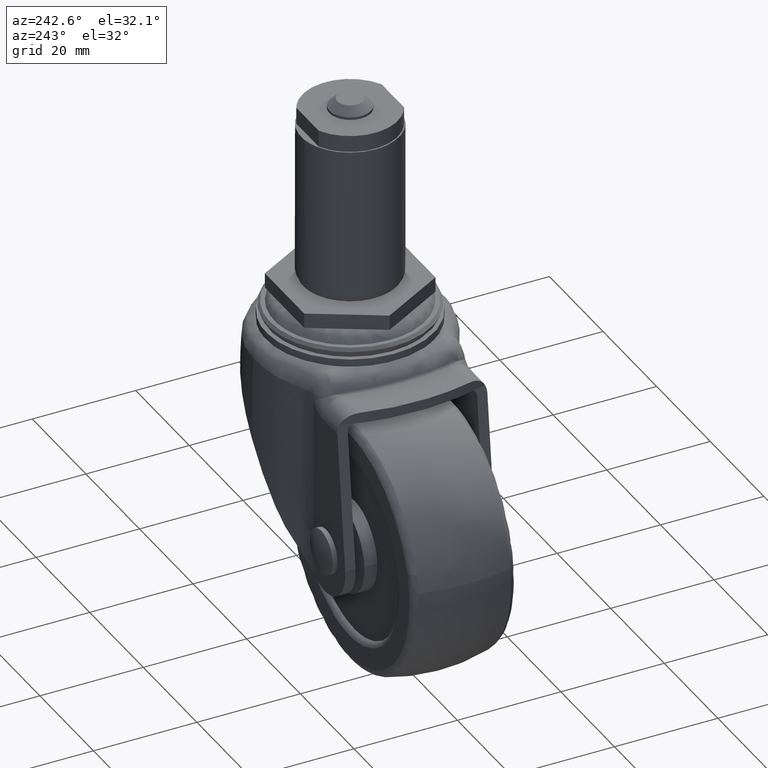
[diagram: clean part render]
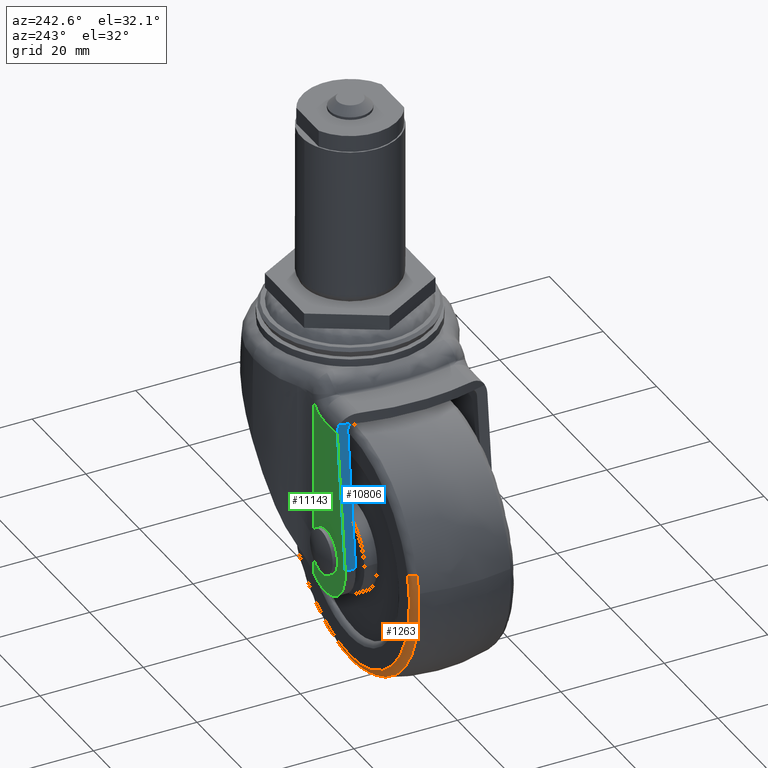
[diagram: same view with three faces highlighted in distinct colors, each labeled with its STEP entity id]
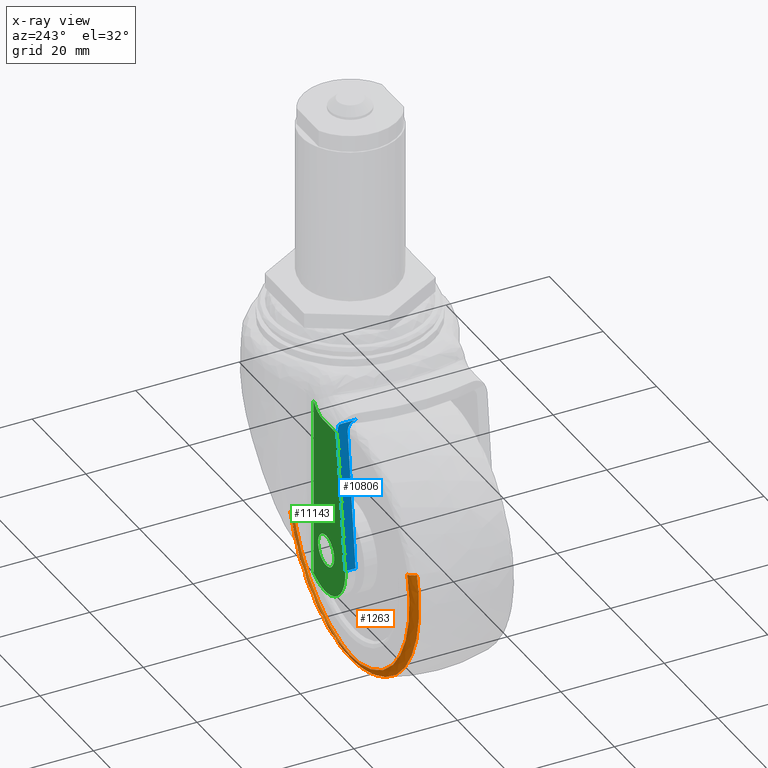
[diagram: x-ray of the same camera — body ghosted, the three highlighted faces saturated]
A machine part, auxiliary view with three faces highlighted in distinct colors.
The next image is the same camera in x-ray (body ghosted, the three faces saturated) — at least one of them is partly hidden behind the body in this view.
Their STEP definitions:

[orange] entity #1263 — the highlighted face is a freeform B-spline surface patch.
#1064=CARTESIAN_POINT('',(4.028813119945495,8.880489886675726,-47.222679916615441));
#1065=VERTEX_POINT('',#1064);
#1083=CARTESIAN_POINT('',(2.628124485182831,9.999900999999911,-46.844236898328127));
#1084=VERTEX_POINT('',#1083);
#1085=CARTESIAN_POINT('',(2.628124485182831,9.999900999999911,-46.844236898328127));
#1086=CARTESIAN_POINT('',(3.745344143223921,9.999900484774969,-47.146096132718164));
#1087=CARTESIAN_POINT('',(4.028813119945494,8.880489886675726,-47.222679916615441));
#1095=(BOUNDED_CURVE()B_SPLINE_CURVE(2,(#1085,#1086,#1087),.UNSPECIFIED.,.F.,.U.)B_SPLINE_CURVE_WITH_KNOTS((3,3),(-1.696659795800468,-0.309248608880567),.UNSPECIFIED.)CURVE()GEOMETRIC_REPRESENTATION_ITEM()RATIONAL_B_SPLINE_CURVE((0.899876851244195,0.711843149614553,0.898282128526452))REPRESENTATION_ITEM(''));
#1096=EDGE_CURVE('',#1084,#1065,#1095,.T.);
#1115=CARTESIAN_POINT('',(-40.628124485182838,9.999900999999912,-35.156605101672092));
#1116=VERTEX_POINT('',#1115);
#1130=CARTESIAN_POINT('',(-42.028807899499128,8.880497459937100,-34.778147135494770));
#1131=VERTEX_POINT('',#1130);
#1132=CARTESIAN_POINT('',(-40.628124485182845,9.999900999999911,-35.156605101672085));
#1133=CARTESIAN_POINT('',(-41.745336664630287,9.999900605327268,-34.854739708771788));
#1134=CARTESIAN_POINT('',(-42.028807899499128,8.880497459937100,-34.778147135494777));
#1142=(BOUNDED_CURVE()B_SPLINE_CURVE(2,(#1132,#1133,#1134),.UNSPECIFIED.,.F.,.U.)B_SPLINE_CURVE_WITH_KNOTS((3,3),(-1.696659795800466,-0.309254368933796),.UNSPECIFIED.)CURVE()GEOMETRIC_REPRESENTATION_ITEM()RATIONAL_B_SPLINE_CURVE((0.899876851244194,0.711843930265697,0.898280580472097))REPRESENTATION_ITEM(''));
#1143=EDGE_CURVE('',#1116,#1131,#1142,.T.);
#1161=CARTESIAN_POINT('',(-40.540825772419034,9.997172734717033,-35.180192796782336));
#1162=CARTESIAN_POINT('',(-46.361053975636800,9.997172734717037,-56.721018569201377));
#1163=CARTESIAN_POINT('',(-24.820228203217756,9.997172734717033,-62.541246772419143));
#1164=CARTESIAN_POINT('',(-3.279402430798734,9.997172734717037,-68.361474975636909));
#1165=CARTESIAN_POINT('',(2.540825772419034,9.997172734717033,-46.820649203217869));
#1166=CARTESIAN_POINT('',(-41.802220761309577,10.076087414427784,-34.839369897637106));
#1167=CARTESIAN_POINT('',(-47.963271863672581,10.076087414427787,-57.641590658946690));
#1168=CARTESIAN_POINT('',(-25.161051102362997,10.076087414427784,-63.802641761309687));
#1169=CARTESIAN_POINT('',(-2.358830341053424,10.076087414427787,-69.963692863672676));
#1170=CARTESIAN_POINT('',(3.802220761309581,10.076087414427784,-47.161472102363113));
#1171=CARTESIAN_POINT('',(-42.048443197118715,8.792166227654304,-34.772841771914266));
#1172=CARTESIAN_POINT('',(-48.276022425204538,8.792166227654306,-57.821284969032959));
#1173=CARTESIAN_POINT('',(-25.227579228085837,8.792166227654304,-64.048864197118803));
#1174=CARTESIAN_POINT('',(-2.179136030967138,8.792166227654306,-70.276443425204647));
#1175=CARTESIAN_POINT('',(4.048443197118707,8.792166227654304,-47.228000228085946));
#1183=(BOUNDED_SURFACE()B_SPLINE_SURFACE(2,2,((#1161,#1166,#1171),(#1162,#1167,#1172),(#1163,#1168,#1173),(#1164,#1169,#1174),(#1165,#1170,#1175)),.UNSPECIFIED.,.F.,.F.,.U.)B_SPLINE_SURFACE_WITH_KNOTS((3,2,3),(3,3),(0.0,39.557320669038653,79.114641338077305),(0.0,2.249893607470231),.UNSPECIFIED.)GEOMETRIC_REPRESENTATION_ITEM()RATIONAL_B_SPLINE_SURFACE(((0.919596098118396,0.692203795207752,0.917841594086243),(0.650252636932207,0.489461997554465,0.649012015233453),(0.919596098118396,0.692203795207752,0.917841594086243),(0.650252636932207,0.489461997554465,0.649012015233453),(0.919596098118396,0.692203795207752,0.917841594086243)))REPRESENTATION_ITEM('')SURFACE());
#1184=CARTESIAN_POINT('',(-19.0,8.880498014925280,-64.855036588697899));
#1185=VERTEX_POINT('',#1184);
#1186=CARTESIAN_POINT('',(-19.0,8.880498014925280,-64.855036588697899));
#1187=CARTESIAN_POINT('',(-0.735354514622848,8.880496921067909,-64.855036791662172));
#1188=CARTESIAN_POINT('',(4.028813119945495,8.880489886675726,-47.222679916615441));
#1196=(BOUNDED_CURVE()B_SPLINE_CURVE(2,(#1186,#1187,#1188),.UNSPECIFIED.,.F.,.U.)B_SPLINE_CURVE_WITH_KNOTS((3,3),(0.0,0.205522304480087),.UNSPECIFIED.)CURVE()GEOMETRIC_REPRESENTATION_ITEM()RATIONAL_B_SPLINE_CURVE((1.0,0.759215642811476,0.914323733400086))REPRESENTATION_ITEM(''));
#1197=EDGE_CURVE('',#1185,#1065,#1196,.T.);
#1198=ORIENTED_EDGE('',*,*,#1197,.F.);
#1199=CARTESIAN_POINT('',(-42.695069877122449,8.880498927539524,-38.246090413273862));
#1200=VERTEX_POINT('',#1199);
#1201=CARTESIAN_POINT('',(-42.695069877122449,8.880498927539524,-38.246090413273855));
#1202=CARTESIAN_POINT('',(-42.854615588697804,8.880498014925280,-39.618634831749134));
#1203=CARTESIAN_POINT('',(-42.854615588697797,8.880498014925280,-41.000421000000102));
#1204=CARTESIAN_POINT('',(-42.854615588697797,8.880498014925280,-64.855036588697899));
#1205=CARTESIAN_POINT('',(-19.0,8.880498014925280,-64.855036588697899));
#1213=(BOUNDED_CURVE()B_SPLINE_CURVE(2,(#1201,#1202,#1203,#1204,#1205),.UNSPECIFIED.,.F.,.U.)B_SPLINE_CURVE_WITH_KNOTS((3,2,3),(0.730000172691811,0.750000000000000,1.0),.UNSPECIFIED.)CURVE()GEOMETRIC_REPRESENTATION_ITEM()RATIONAL_B_SPLINE_CURVE((0.956886458090290,0.976568744815966,1.0,0.707106781186547,1.0))REPRESENTATION_ITEM(''));
#1214=EDGE_CURVE('',#1200,#1185,#1213,.T.);
#1215=ORIENTED_EDGE('',*,*,#1214,.F.);
#1216=CARTESIAN_POINT('',(-42.028807899499121,8.880497459937100,-34.778147135494777));
#1217=CARTESIAN_POINT('',(-42.490637772213731,8.880498219636849,-36.487393125349229));
#1218=CARTESIAN_POINT('',(-42.695069877122449,8.880498927539524,-38.246090413273855));
#1226=(BOUNDED_CURVE()B_SPLINE_CURVE(2,(#1216,#1217,#1218),.UNSPECIFIED.,.F.,.U.)B_SPLINE_CURVE_WITH_KNOTS((3,3),(0.705522210326193,0.730000172691811),.UNSPECIFIED.)CURVE()GEOMETRIC_REPRESENTATION_ITEM()RATIONAL_B_SPLINE_CURVE((0.914323591283909,0.932797136401840,0.956886458090290))REPRESENTATION_ITEM(''));
#1227=EDGE_CURVE('',#1131,#1200,#1226,.T.);
#1228=ORIENTED_EDGE('',*,*,#1227,.F.);
#1229=ORIENTED_EDGE('',*,*,#1143,.F.);
#1230=CARTESIAN_POINT('',(-19.0,9.999901000000000,-63.404124999999887));
#1231=VERTEX_POINT('',#1230);
#1232=CARTESIAN_POINT('',(-40.628124485182830,9.999900999999912,-35.156605101672085));
#1233=CARTESIAN_POINT('',(-41.403703999999792,9.999901000000001,-38.027046372690180));
#1234=CARTESIAN_POINT('',(-41.403703999999799,9.999901000000000,-41.000421000000102));
#1235=CARTESIAN_POINT('',(-41.403703999999784,9.999901000000000,-63.404124999999894));
#1236=CARTESIAN_POINT('',(-19.0,9.999901000000000,-63.404124999999887));
#1244=(BOUNDED_CURVE()B_SPLINE_CURVE(2,(#1232,#1233,#1234,#1235,#1236),.UNSPECIFIED.,.F.,.U.)B_SPLINE_CURVE_WITH_KNOTS((3,2,3),(0.705522207670472,0.750000000000000,1.0),.UNSPECIFIED.)CURVE()GEOMETRIC_REPRESENTATION_ITEM()RATIONAL_B_SPLINE_CURVE((0.914323587275358,0.947891024955553,1.0,0.707106781186547,1.0))REPRESENTATION_ITEM(''));
#1245=EDGE_CURVE('',#1116,#1231,#1244,.T.);
#1246=ORIENTED_EDGE('',*,*,#1245,.T.);
#1247=CARTESIAN_POINT('',(-19.0,9.999901000000000,-63.404124999999887));
#1248=CARTESIAN_POINT('',(-1.846278159859508,9.999900999999998,-63.404124999999880));
#1249=CARTESIAN_POINT('',(2.628124485182831,9.999900999999912,-46.844236898328134));
#1257=(BOUNDED_CURVE()B_SPLINE_CURVE(2,(#1247,#1248,#1249),.UNSPECIFIED.,.F.,.U.)B_SPLINE_CURVE_WITH_KNOTS((3,3),(0.0,0.205522207670472),.UNSPECIFIED.)CURVE()GEOMETRIC_REPRESENTATION_ITEM()RATIONAL_B_SPLINE_CURVE((1.0,0.759215756230994,0.914323587275358))REPRESENTATION_ITEM(''));
#1258=EDGE_CURVE('',#1231,#1084,#1257,.T.);
#1259=ORIENTED_EDGE('',*,*,#1258,.T.);
#1260=ORIENTED_EDGE('',*,*,#1096,.T.);
#1261=EDGE_LOOP('',(#1198,#1215,#1228,#1229,#1246,#1259,#1260));
#1262=FACE_OUTER_BOUND('',#1261,.T.);
#1263=ADVANCED_FACE('',(#1262),#1183,.T.);

[blue] entity #10806 — the highlighted face is a freeform B-spline surface patch.
#8267=CARTESIAN_POINT('',(-23.201319942602201,14.500240000000000,-14.101519000000120));
#8268=VERTEX_POINT('',#8267);
#8274=CARTESIAN_POINT('',(-23.006175807149749,14.066864790355460,-12.351519000000099));
#8275=VERTEX_POINT('',#8274);
#8276=CARTESIAN_POINT('',(-23.006175807149731,14.066864790355391,-12.351519000000099));
#8277=CARTESIAN_POINT('',(-23.097764068382634,14.500240000000003,-13.172857836475965));
#8278=CARTESIAN_POINT('',(-23.201319942602151,14.500240000000000,-14.101519000000120));
#8286=(BOUNDED_CURVE()B_SPLINE_CURVE(2,(#8276,#8277,#8278),.UNSPECIFIED.,.F.,.U.)CURVE()GEOMETRIC_REPRESENTATION_ITEM()QUASI_UNIFORM_CURVE()RATIONAL_B_SPLINE_CURVE((1.0,0.970678442489607,1.0))REPRESENTATION_ITEM(''));
#8287=EDGE_CURVE('',#8275,#8268,#8286,.T.);
#9264=CARTESIAN_POINT('',(-23.201319942602201,12.500240000000000,-14.101519000000120));
#9265=VERTEX_POINT('',#9264);
#9266=CARTESIAN_POINT('',(-23.006175807149749,10.750240000000000,-12.351519000000099));
#9267=VERTEX_POINT('',#9266);
#9268=CARTESIAN_POINT('',(-23.201319942602151,12.500240000000000,-14.101519000000129));
#9269=CARTESIAN_POINT('',(-23.120488595080189,12.500240000000000,-13.376645265847197));
#9270=CARTESIAN_POINT('',(-23.063332201114960,11.987676867076470,-12.864082132923651));
#9271=CARTESIAN_POINT('',(-23.006175807149731,11.475113734152918,-12.351519000000104));
#9272=CARTESIAN_POINT('',(-23.006175807149731,10.750240000000000,-12.351519000000099));
#9280=(BOUNDED_CURVE()B_SPLINE_CURVE(2,(#9268,#9269,#9270,#9271,#9272),.UNSPECIFIED.,.F.,.U.)B_SPLINE_CURVE_WITH_KNOTS((3,2,3),(0.0,0.500000000000000,1.0),.UNSPECIFIED.)CURVE()GEOMETRIC_REPRESENTATION_ITEM()RATIONAL_B_SPLINE_CURVE((1.0,0.923879532511324,1.0,0.923879532511324,1.0))REPRESENTATION_ITEM(''));
#9281=EDGE_CURVE('',#9265,#9267,#9280,.T.);
#9886=CARTESIAN_POINT('',(-26.117611551857099,12.500240000000000,-40.254040198941098));
#9887=VERTEX_POINT('',#9886);
#9888=CARTESIAN_POINT('',(-26.117611551857099,12.500240000000000,-40.254040198941098));
#9889=CARTESIAN_POINT('',(-23.201319942602201,12.500240000000000,-14.101519000000120));
#9890=QUASI_UNIFORM_CURVE('',1,(#9888,#9889),.UNSPECIFIED.,.F.,.U.);
#9891=EDGE_CURVE('',#9887,#9265,#9890,.T.);
#10779=CARTESIAN_POINT('',(-26.273028190613658,10.562927810691450,-41.647770500499902));
#10780=CARTESIAN_POINT('',(-22.850759493851729,10.562927810691450,-10.957787399298949));
#10781=CARTESIAN_POINT('',(-26.273028190613658,14.687552859860810,-41.647770500499902));
#10782=CARTESIAN_POINT('',(-22.850759493851729,14.687552859860810,-10.957787399298949));
#10783=B_SPLINE_SURFACE_WITH_KNOTS('',1,1,((#10779,#10781),(#10780,#10782)),.UNSPECIFIED.,.F.,.F.,.U.,(2,2),(2,2),(0.0,30.880203784703831),(0.0,4.124625049169362),.UNSPECIFIED.);
#10784=CARTESIAN_POINT('',(-23.006175807149749,10.750240000000000,-12.351519000000099));
#10785=CARTESIAN_POINT('',(-23.006175807149749,14.066864790355460,-12.351519000000099));
#10786=QUASI_UNIFORM_CURVE('',1,(#10784,#10785),.UNSPECIFIED.,.F.,.U.);
#10787=EDGE_CURVE('',#9267,#8275,#10786,.T.);
#10788=ORIENTED_EDGE('',*,*,#10787,.T.);
#10789=ORIENTED_EDGE('',*,*,#8287,.T.);
#10790=CARTESIAN_POINT('',(-26.117611551857099,14.500240000000000,-40.254040198941098));
#10791=VERTEX_POINT('',#10790);
#10792=CARTESIAN_POINT('',(-26.117611551857099,14.500240000000000,-40.254040198941098));
#10793=CARTESIAN_POINT('',(-23.201319942602201,14.500240000000000,-14.101519000000120));
#10794=QUASI_UNIFORM_CURVE('',1,(#10792,#10793),.UNSPECIFIED.,.F.,.U.);
#10795=EDGE_CURVE('',#10791,#8268,#10794,.T.);
#10796=ORIENTED_EDGE('',*,*,#10795,.F.);
#10797=CARTESIAN_POINT('',(-26.117611551857099,12.500240000000000,-40.254040198941098));
#10798=CARTESIAN_POINT('',(-26.117611551857099,14.500240000000000,-40.254040198941098));
#10799=QUASI_UNIFORM_CURVE('',1,(#10797,#10798),.UNSPECIFIED.,.F.,.U.);
#10800=EDGE_CURVE('',#9887,#10791,#10799,.T.);
#10801=ORIENTED_EDGE('',*,*,#10800,.F.);
#10802=ORIENTED_EDGE('',*,*,#9891,.T.);
#10803=ORIENTED_EDGE('',*,*,#9281,.T.);
#10804=EDGE_LOOP('',(#10788,#10789,#10796,#10801,#10802,#10803));
#10805=FACE_OUTER_BOUND('',#10804,.T.);
#10806=ADVANCED_FACE('',(#10805),#10783,.T.);

[green] entity #11143 — the highlighted face is a freeform B-spline surface patch.
#4149=CARTESIAN_POINT('',(-16.020971420945369,14.500240000000000,-39.646396295724543));
#4150=VERTEX_POINT('',#4149);
#4156=CARTESIAN_POINT('',(-19.0,14.500240000000000,-43.000499000000019));
#4157=VERTEX_POINT('',#4156);
#4158=CARTESIAN_POINT('',(-16.020971420945369,14.500240000000002,-39.646396295724550));
#4159=CARTESIAN_POINT('',(-16.000000000000085,14.500240000000000,-39.822826640735848));
#4160=CARTESIAN_POINT('',(-16.000000000000082,14.500240000000000,-40.000499000000097));
#4161=CARTESIAN_POINT('',(-16.000000000000082,14.500240000000009,-43.000499000000012));
#4162=CARTESIAN_POINT('',(-19.0,14.500240000000000,-43.000499000000019));
#4170=(BOUNDED_CURVE()B_SPLINE_CURVE(2,(#4158,#4159,#4160,#4161,#4162),.UNSPECIFIED.,.F.,.U.)B_SPLINE_CURVE_WITH_KNOTS((3,2,3),(0.229562473481005,0.250000000000000,0.500000000000000),.UNSPECIFIED.)CURVE()GEOMETRIC_REPRESENTATION_ITEM()RATIONAL_B_SPLINE_CURVE((0.956026754119991,0.976055948293065,1.0,0.707106781186548,1.0))REPRESENTATION_ITEM(''));
#4171=EDGE_CURVE('',#4150,#4157,#4170,.T.);
#4173=CARTESIAN_POINT('',(-21.994404395263050,14.500240000000000,-40.183644618645097));
#4174=VERTEX_POINT('',#4173);
#4175=CARTESIAN_POINT('',(-19.0,14.500240000000000,-43.000499000000019));
#4176=CARTESIAN_POINT('',(-21.822118200640624,14.500240000000003,-43.000499000000026));
#4177=CARTESIAN_POINT('',(-21.994404395263047,14.500240000000000,-40.183644618645104));
#4185=(BOUNDED_CURVE()B_SPLINE_CURVE(2,(#4175,#4176,#4177),.UNSPECIFIED.,.F.,.U.)B_SPLINE_CURVE_WITH_KNOTS((3,3),(0.500000000000000,0.739332962237306),.UNSPECIFIED.)CURVE()GEOMETRIC_REPRESENTATION_ITEM()RATIONAL_B_SPLINE_CURVE((1.0,0.719603993288627,0.976072041663210))REPRESENTATION_ITEM(''));
#4186=EDGE_CURVE('',#4157,#4174,#4185,.T.);
#4260=CARTESIAN_POINT('',(-19.0,14.500240000000000,-37.000499000000183));
#4261=VERTEX_POINT('',#4260);
#4262=CARTESIAN_POINT('',(-21.994404395263047,14.500240000000003,-40.183644618645104));
#4263=CARTESIAN_POINT('',(-21.999999999999915,14.500240000000000,-40.092157289936416));
#4264=CARTESIAN_POINT('',(-21.999999999999918,14.500240000000000,-40.000499000000097));
#4265=CARTESIAN_POINT('',(-21.999999999999918,14.500240000000009,-37.000499000000175));
#4266=CARTESIAN_POINT('',(-19.0,14.500240000000000,-37.000499000000183));
#4274=(BOUNDED_CURVE()B_SPLINE_CURVE(2,(#4262,#4263,#4264,#4265,#4266),.UNSPECIFIED.,.F.,.U.)B_SPLINE_CURVE_WITH_KNOTS((3,2,3),(0.739332962237307,0.750000000000000,1.0),.UNSPECIFIED.)CURVE()GEOMETRIC_REPRESENTATION_ITEM()RATIONAL_B_SPLINE_CURVE((0.976072041663212,0.987502787897921,1.0,0.707106781186548,1.0))REPRESENTATION_ITEM(''));
#4275=EDGE_CURVE('',#4174,#4261,#4274,.T.);
#4277=CARTESIAN_POINT('',(-19.0,14.500240000000000,-37.000499000000183));
#4278=CARTESIAN_POINT('',(-16.335476422695944,14.500240000000007,-37.000499000000183));
#4279=CARTESIAN_POINT('',(-16.020971420945369,14.500240000000002,-39.646396295724550));
#4287=(BOUNDED_CURVE()B_SPLINE_CURVE(2,(#4277,#4278,#4279),.UNSPECIFIED.,.F.,.U.)B_SPLINE_CURVE_WITH_KNOTS((3,3),(0.0,0.229562473481005),.UNSPECIFIED.)CURVE()GEOMETRIC_REPRESENTATION_ITEM()RATIONAL_B_SPLINE_CURVE((1.0,0.731050832893483,0.956026754119991))REPRESENTATION_ITEM(''));
#4288=EDGE_CURVE('',#4261,#4150,#4287,.T.);
#7836=CARTESIAN_POINT('',(-14.351389509793160,14.500240000000000,-12.355357293252419));
#7837=VERTEX_POINT('',#7836);
#8018=CARTESIAN_POINT('',(-17.872119485698050,14.500240000000000,-14.101519000000120));
#8019=VERTEX_POINT('',#8018);
#8051=CARTESIAN_POINT('',(-17.872119485698050,14.500240000000000,-14.101519000000099));
#8052=CARTESIAN_POINT('',(-17.700863526060228,14.500240000000000,-14.101519000000110));
#8053=CARTESIAN_POINT('',(-17.531450792253040,14.500240000000000,-14.091672956415319));
#8054=CARTESIAN_POINT('',(-17.196150783298911,14.500240000000000,-14.053148765741041));
#8055=CARTESIAN_POINT('',(-17.030264083564472,14.500240000000000,-14.024467544944381));
#8056=CARTESIAN_POINT('',(-16.702005608680160,14.500240000000000,-13.948329270199430));
#8057=CARTESIAN_POINT('',(-16.539633404250729,14.500240000000000,-13.900874509353351));
#8058=CARTESIAN_POINT('',(-16.298812268003470,14.500240000000000,-13.815071099990700));
#8059=CARTESIAN_POINT('',(-16.218808483072628,14.500240000000000,-13.783932925192209));
#8060=CARTESIAN_POINT('',(-16.061774417686021,14.500240000000000,-13.717510468194529));
#8061=CARTESIAN_POINT('',(-15.984523517611571,14.500240000000000,-13.682160215026631));
#8062=CARTESIAN_POINT('',(-15.756510837006161,14.500240000000000,-13.569791006644360));
#8063=CARTESIAN_POINT('',(-15.609476358145161,14.500240000000000,-13.486475088455981));
#8064=CARTESIAN_POINT('',(-15.325358650012539,14.500240000000000,-13.303031452080610));
#8065=CARTESIAN_POINT('',(-15.188273912001190,14.500240000000000,-13.202906282782619));
#8066=CARTESIAN_POINT('',(-14.990431844442380,14.500240000000000,-13.039566358831530));
#8067=CARTESIAN_POINT('',(-14.926033479608240,14.500240000000000,-12.983111452917640));
#8068=CARTESIAN_POINT('',(-14.801174026272740,14.500240000000000,-12.866949373901360));
#8069=CARTESIAN_POINT('',(-14.740579469691429,14.500240000000000,-12.807133307759480));
#8070=CARTESIAN_POINT('',(-14.564293189289060,14.500240000000010,-12.622487707199790));
#8071=CARTESIAN_POINT('',(-14.454078351992949,14.500240000000000,-12.492480154645730));
#8072=CARTESIAN_POINT('',(-14.351389509793179,14.500240000000000,-12.355357293252419));
#8073=B_SPLINE_CURVE_WITH_KNOTS('',3,(#8051,#8052,#8053,#8054,#8055,#8056,#8057,#8058,#8059,#8060,#8061,#8062,#8063,#8064,#8065,#8066,#8067,#8068,#8069,#8070,#8071,#8072),.UNSPECIFIED.,.F.,.U.,(4,2,2,2,2,2,2,2,2,2,4),(0.0,0.124999999999999,0.249999999999998,0.374999999999997,0.437499999999998,0.499999999999999,0.624999999999999,0.750000000000000,0.812500000000000,0.875000000000000,1.0),.UNSPECIFIED.);
#8074=EDGE_CURVE('',#8019,#7837,#8073,.T.);
#8267=CARTESIAN_POINT('',(-23.201319942602201,14.500240000000000,-14.101519000000120));
#8268=VERTEX_POINT('',#8267);
#8269=CARTESIAN_POINT('',(-23.201319942602201,14.500240000000000,-14.101519000000120));
#8270=CARTESIAN_POINT('',(-17.872119485698050,14.500240000000000,-14.101519000000120));
#8271=QUASI_UNIFORM_CURVE('',1,(#8269,#8270),.UNSPECIFIED.,.F.,.U.);
#8272=EDGE_CURVE('',#8268,#8019,#8271,.T.);
#9642=CARTESIAN_POINT('',(-14.351389509793160,14.500240000000000,-47.137314989502798));
#9643=VERTEX_POINT('',#9642);
#9659=CARTESIAN_POINT('',(-14.351389509793160,14.500240000000000,-12.355357293252419));
#9660=CARTESIAN_POINT('',(-14.351389509793160,14.500240000000000,-47.137314989502798));
#9661=QUASI_UNIFORM_CURVE('',1,(#9659,#9660),.UNSPECIFIED.,.F.,.U.);
#9662=EDGE_CURVE('',#7837,#9643,#9661,.T.);
#10790=CARTESIAN_POINT('',(-26.117611551857099,14.500240000000000,-40.254040198941098));
#10791=VERTEX_POINT('',#10790);
#10792=CARTESIAN_POINT('',(-26.117611551857099,14.500240000000000,-40.254040198941098));
#10793=CARTESIAN_POINT('',(-23.201319942602201,14.500240000000000,-14.101519000000120));
#10794=QUASI_UNIFORM_CURVE('',1,(#10792,#10793),.UNSPECIFIED.,.F.,.U.);
#10795=EDGE_CURVE('',#10791,#8268,#10794,.T.);
#10821=CARTESIAN_POINT('',(-15.371526078570501,14.500240000000000,-47.695787531531799));
#10822=VERTEX_POINT('',#10821);
#10830=CARTESIAN_POINT('',(-26.117611551857092,14.500240000000000,-40.254040198941098));
#10831=CARTESIAN_POINT('',(-26.524666950429690,14.500240000000003,-44.619840999164772));
#10832=CARTESIAN_POINT('',(-22.919908716751539,14.500240000000000,-47.116164055475870));
#10833=CARTESIAN_POINT('',(-19.315150483073385,14.500240000000003,-49.612487111786962));
#10834=CARTESIAN_POINT('',(-15.371526078570501,14.500240000000000,-47.695787531531799));
#10842=(BOUNDED_CURVE()B_SPLINE_CURVE(2,(#10830,#10831,#10832,#10833,#10834),.UNSPECIFIED.,.F.,.U.)B_SPLINE_CURVE_WITH_KNOTS((3,2,3),(0.0,0.500000000000000,1.0),.UNSPECIFIED.)CURVE()GEOMETRIC_REPRESENTATION_ITEM()RATIONAL_B_SPLINE_CURVE((1.0,0.863290739633807,1.0,0.863290739633807,1.0))REPRESENTATION_ITEM(''));
#10843=EDGE_CURVE('',#10791,#10822,#10842,.T.);
#10909=CARTESIAN_POINT('',(-15.371526078570520,14.500240000000000,-47.695787531531792));
#10910=CARTESIAN_POINT('',(-14.847910548632074,14.500240000000000,-47.441297402093589));
#10911=CARTESIAN_POINT('',(-14.351389509793140,14.500240000000000,-47.137314989502833));
#10919=(BOUNDED_CURVE()B_SPLINE_CURVE(2,(#10909,#10910,#10911),.UNSPECIFIED.,.F.,.U.)CURVE()GEOMETRIC_REPRESENTATION_ITEM()QUASI_UNIFORM_CURVE()RATIONAL_B_SPLINE_CURVE((1.0,0.998825203851347,1.0))REPRESENTATION_ITEM(''));
#10920=EDGE_CURVE('',#10822,#9643,#10919,.T.);
#11124=CARTESIAN_POINT('',(-26.737359576221021,14.500240000000000,-50.249892416712022));
#11125=CARTESIAN_POINT('',(-26.737359576221021,14.500240000000000,-10.552573374137600));
#11126=CARTESIAN_POINT('',(-13.762143749475991,14.500240000000000,-50.249892416712022));
#11127=CARTESIAN_POINT('',(-13.762143749475991,14.500240000000000,-10.552573374137600));
#11128=B_SPLINE_SURFACE_WITH_KNOTS('',1,1,((#11124,#11126),(#11125,#11127)),.UNSPECIFIED.,.F.,.F.,.U.,(2,2),(2,2),(0.0,39.697319042574421),(0.0,12.975215826745019),.UNSPECIFIED.);
#11129=ORIENTED_EDGE('',*,*,#8272,.T.);
#11130=ORIENTED_EDGE('',*,*,#8074,.T.);
#11131=ORIENTED_EDGE('',*,*,#9662,.T.);
#11132=ORIENTED_EDGE('',*,*,#10920,.F.);
#11133=ORIENTED_EDGE('',*,*,#10843,.F.);
#11134=ORIENTED_EDGE('',*,*,#10795,.T.);
#11135=EDGE_LOOP('',(#11129,#11130,#11131,#11132,#11133,#11134));
#11136=FACE_OUTER_BOUND('',#11135,.T.);
#11137=ORIENTED_EDGE('',*,*,#4186,.F.);
#11138=ORIENTED_EDGE('',*,*,#4171,.F.);
#11139=ORIENTED_EDGE('',*,*,#4288,.F.);
#11140=ORIENTED_EDGE('',*,*,#4275,.F.);
#11141=EDGE_LOOP('',(#11137,#11138,#11139,#11140));
#11142=FACE_BOUND('',#11141,.T.);
#11143=ADVANCED_FACE('',(#11136,#11142),#11128,.T.);